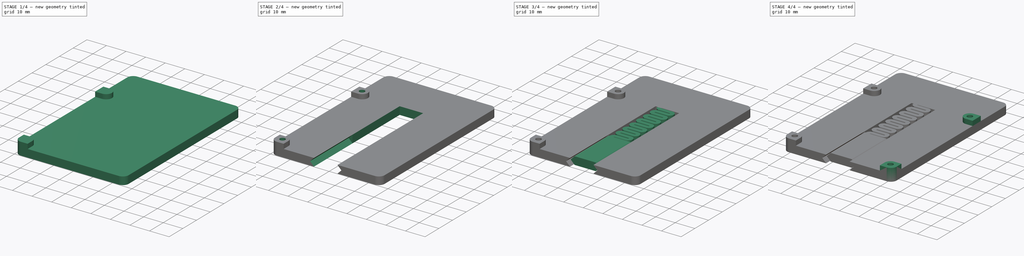
[diagram: build sequence overview — one tinted view per stage of 4, left to right]
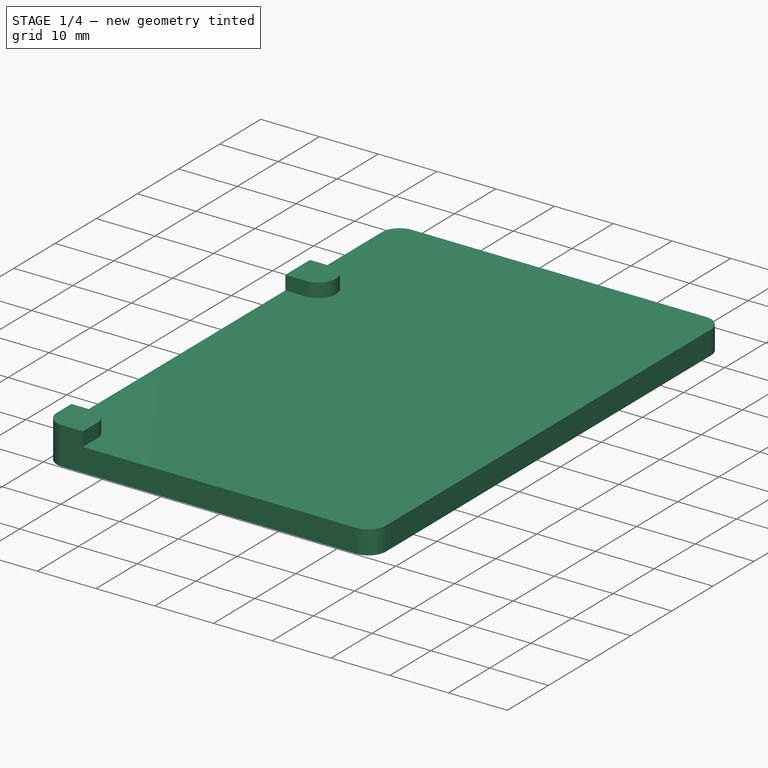
[diagram: stage 1 of 4 — iso view after this stage's code; geometry added in this stage tinted green]
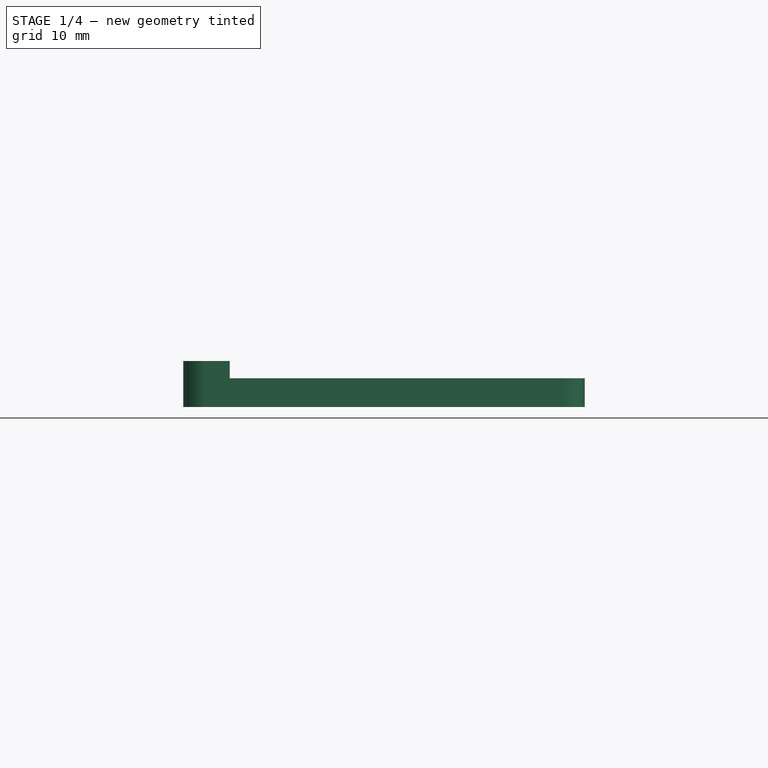
[diagram: stage 1 of 4 — front view after this stage's code; geometry added in this stage tinted green]
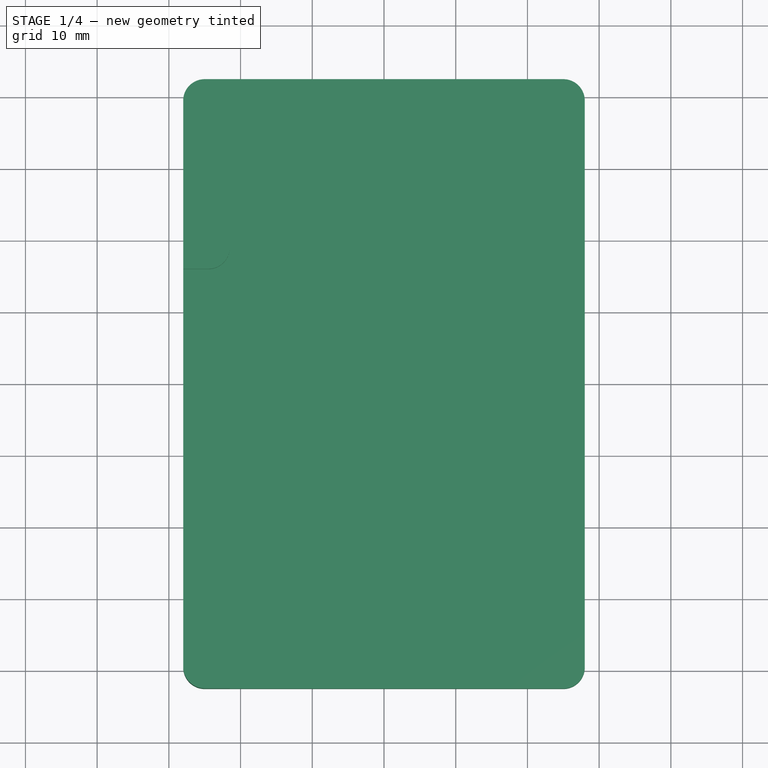
[diagram: stage 1 of 4 — top view after this stage's code; geometry added in this stage tinted green]
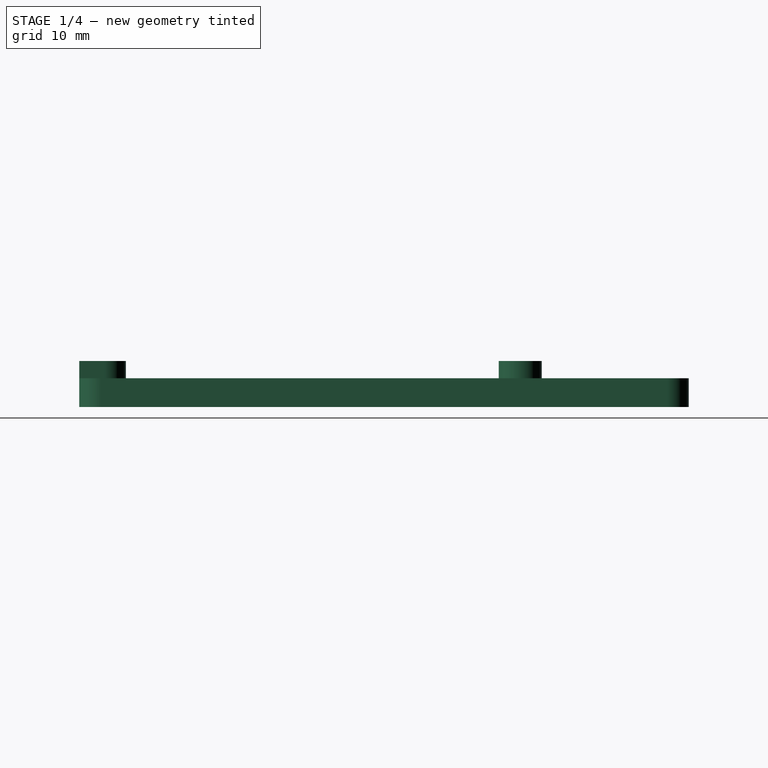
[diagram: stage 1 of 4 — right view after this stage's code; geometry added in this stage tinted green]
FCSTD DOCUMENT  (FreeCAD 0.20R29177 (Git))
Label: Mount
License: All rights reserved
LicenseURL: http://en.wikipedia.org/wiki/All_rights_reserved
objects: Sketcher::SketchObject×10, PartDesign::Pad×6, PartDesign::Pocket×4, PartDesign::LinearPattern×1, PartDesign::Mirrored×1, PartDesign::Body×1
note: 33 computed .brp shape members not serialized (recipe doc carries the construction recipe); baked Part::Feature solids carry a one-line shape summary decoded from their .brp

FEATURE [Sketcher::SketchObject] Sketch
  FullyConstrained = true
  MapMode = 5
  Support = -> [XY_Plane]
  sketch-geometry (10):
    g0: ArcOfCircle CenterX=-25 CenterY=39.5 CenterZ=0 NormalX=0 NormalY=0 NormalZ=1 AngleXU=0 Radius=3 StartAngle=1.5708 EndAngle=3.14159
    g1: LineSegment StartX=-25 StartY=42.5 StartZ=0 EndX=25 EndY=42.5 EndZ=0
    g2: ArcOfCircle CenterX=25 CenterY=39.5 CenterZ=0 NormalX=0 NormalY=0 NormalZ=1 AngleXU=0 Radius=3 StartAngle=1.1e-15 EndAngle=1.5708
    g3: LineSegment StartX=28 StartY=39.5 StartZ=0 EndX=28 EndY=-39.5 EndZ=0
    g4: ArcOfCircle CenterX=25 CenterY=-39.5 CenterZ=0 NormalX=0 NormalY=0 NormalZ=1 AngleXU=0 Radius=3 StartAngle=4.71239 EndAngle=6.28319
    g5: LineSegment StartX=25 StartY=-42.5 StartZ=0 EndX=-25 EndY=-42.5 EndZ=0
    g6: ArcOfCircle CenterX=-25 CenterY=-39.5 CenterZ=0 NormalX=0 NormalY=0 NormalZ=1 AngleXU=0 Radius=3 StartAngle=3.14159 EndAngle=4.71239
    g7: LineSegment StartX=-28 StartY=-39.5 StartZ=0 EndX=-28 EndY=39.5 EndZ=0
    g8: GeomPoint X=-28 Y=42.5 Z=0
    g9: GeomPoint X=28 Y=-42.5 Z=0
  constraints (23):
    c: Tangent(g0,g1) = 1.5708
    c: Tangent(g1,g2) = 1.5708
    c: Tangent(g2,g3) = 1.5708
    c: Tangent(g3,g4) = 1.5708
    c: Tangent(g4,g5) = 1.5708
    c: Tangent(g5,g6) = 1.5708
    c: Tangent(g6,g7) = 1.5708
    c: Tangent(g7,g0) = 1.5708
    c: Horizontal(g1)
    c: Horizontal(g5)
    c: Vertical(g3)
    c: Vertical(g7)
    c: Equal(g0,g2)
    c: Equal(g2,g4)
    c: Equal(g4,g6)
    c: PointOnObject(g8,g1)
    c: PointOnObject(g8,g7)
    c: PointOnObject(g9,g3)
    c: PointOnObject(g9,g5)
    c: Radius(g0) = 3
    c: DistanceX(g6,g3) = 56
    c: DistanceY(g5,g0) = 85
    c: Symmetric(g6,g2,g-1)
FEATURE [PartDesign::Pad] Pad  label="Shape"
  Direction = (0,0,1)
  Length = 4
  Length2 = 10
  Profile = -> Sketch
  ReferenceAxis = -> Sketch [N_Axis]
  Type = 0
FEATURE [Sketcher::SketchObject] Sketch001
  AttachmentOffset = pos=(0,0,4) rot=(0,0,1;0rad)
  ExternalGeometry = -> [Pad]
  FullyConstrained = true
  MapMode = 5
  Placement = pos=(0,0,4) rot=(0,0,1;0rad)
  Support = -> [XY_Plane]
  sketch-geometry (10):
    g0: ArcOfCircle CenterX=-25 CenterY=-39.5 CenterZ=0 NormalX=0 NormalY=0 NormalZ=1 AngleXU=0 Radius=3 StartAngle=3.14159 EndAngle=4.71239
    g1: LineSegment StartX=-25 StartY=-42.5 StartZ=0 EndX=-21.5 EndY=-42.5 EndZ=0
    g2: LineSegment StartX=-28 StartY=-39.5 StartZ=0 EndX=-28 EndY=-36 EndZ=0
    g3: ArcOfCircle CenterX=-24.5 CenterY=-39 CenterZ=0 NormalX=0 NormalY=0 NormalZ=1 AngleXU=0 Radius=3 StartAngle=-5.3e-15 EndAngle=1.5708
    g4: LineSegment StartX=-21.5 StartY=-42.5 StartZ=0 EndX=-21.5 EndY=-39 EndZ=0
    g5: LineSegment StartX=-28 StartY=-36 StartZ=0 EndX=-24.5 EndY=-36 EndZ=0
    g6: ArcOfCircle CenterX=-24.5 CenterY=19 CenterZ=0 NormalX=0 NormalY=0 NormalZ=1 AngleXU=0 Radius=3 StartAngle=4.71239 EndAngle=7.85398
    g7: LineSegment StartX=-24.5 StartY=22 StartZ=0 EndX=-28 EndY=22 EndZ=0
    g8: LineSegment StartX=-24.5 StartY=16 StartZ=0 EndX=-28 EndY=16 EndZ=0
    g9: LineSegment StartX=-28 StartY=16 StartZ=0 EndX=-28 EndY=22 EndZ=0
  constraints (31):
    c: Coincident(g0,g-3)
    c: Coincident(g0,g-3)
    c: Coincident(g1,g0)
    c: Horizontal(g1)
    c: Coincident(g2,g0)
    c: Vertical(g2)
    c: Coincident(g4,g1)
    c: Coincident(g4,g3)
    c: Vertical(g4)
    c: Coincident(g5,g2)
    c: Coincident(g5,g3)
    c: Horizontal(g5)
    c: Radius(g3) = 3
    c: DistanceX(g1,g1) = 3.5
    c: DistanceY(g4,g4) = 3.5
    c: DistanceY(g2,g2) = 3.5
    c: DistanceX(g5,g5) = 3.5
    c: Coincident(g7,g6)
    c: Horizontal(g7)
    c: Coincident(g8,g6)
    c: Horizontal(g8)
    c: Coincident(g9,g8)
    c: Coincident(g9,g7)
    c: Vertical(g9)
    c: Radius(g6) = 3
    c: DistanceX(g7,g7) = 3.5
    c: Vertical(g6,g3)
    c: DistanceX(g8,g8) = 3.5
    c: Vertical(g6,g6)
    c: DistanceY(g3,g6) = 58
    c: DistanceX(g0,g3) = 0.5
FEATURE [PartDesign::Pad] Pad001  label="Standoff"
  BaseFeature = -> Pad
  Direction = (0,0,1)
  Length = 2.4
  Length2 = 10
  Profile = -> Sketch001
  ReferenceAxis = -> Sketch001 [N_Axis]
  Type = 0
FEATURE [Sketcher::SketchObject] Sketch003
  AttachmentOffset = pos=(0,0,42.5) rot=(0,0,1;0rad)
  FullyConstrained = true
  MapMode = 5
  Placement = pos=(0,-42.5,-9.4e-15) rot=(1,0,0;1.5708rad)
  Support = -> [XZ_Plane]
  sketch-geometry (6):
    g0: LineSegment StartX=-6 StartY=0 StartZ=0 EndX=-8 EndY=2 EndZ=0
    g1: LineSegment StartX=-8 StartY=2 StartZ=0 EndX=-6 EndY=4 EndZ=0
    g2: LineSegment StartX=-6 StartY=4 StartZ=0 EndX=6 EndY=4 EndZ=0
    g3: LineSegment StartX=6 StartY=4 StartZ=0 EndX=8 EndY=2 EndZ=0
    g4: LineSegment StartX=8 StartY=2 StartZ=0 EndX=6 EndY=0 EndZ=0
    g5: LineSegment StartX=6 StartY=0 StartZ=0 EndX=-6 EndY=0 EndZ=0
  constraints (17):
    c: PointOnObject(g0,g-1)
    c: Coincident(g1,g0)
    c: Coincident(g2,g1)
    c: Horizontal(g2)
    c: Coincident(g3,g2)
    c: Coincident(g4,g3)
    c: Coincident(g5,g4)
    c: Coincident(g5,g0)
    c: Angle(g5,g0) = 2.35619
    c: Angle(g4,g5) = 2.35619
    c: Perpendicular(g3,g4)
    c: Perpendicular(g1,g0)
    c: Equal(g0,g1)
    c: Equal(g3,g4)
    c: Symmetric(g0,g4,g-1)
    c: DistanceX(g5,g5) = 12
    c: DistanceY(g4,g2) = 4
FEATURE [Sketcher::SketchObject] Sketch005
  ExternalGeometry = -> [Sketch001]
  FullyConstrained = true
  MapMode = 5
  Support = -> [XY_Plane]
  sketch-geometry (14):
    g0: LineSegment StartX=-21.9019 StartY=-40.5 StartZ=0 EndX=-21.9019 EndY=-37.5 EndZ=0
    g1: LineSegment StartX=-21.9019 StartY=-37.5 StartZ=0 EndX=-24.5 EndY=-36 EndZ=0
    g2: LineSegment StartX=-24.5 StartY=-36 StartZ=0 EndX=-27.0981 EndY=-37.5 EndZ=0
    g3: LineSegment StartX=-27.0981 StartY=-37.5 StartZ=0 EndX=-27.0981 EndY=-40.5 EndZ=0
    g4: LineSegment StartX=-27.0981 StartY=-40.5 StartZ=0 EndX=-24.5 EndY=-42 EndZ=0
    g5: LineSegment StartX=-24.5 StartY=-42 StartZ=0 EndX=-21.9019 EndY=-40.5 EndZ=0
    g6: Circle CenterX=-24.5 CenterY=-39 CenterZ=0 NormalX=0 NormalY=0 NormalZ=1 AngleXU=0 Radius=3
    g7: LineSegment StartX=-21.9019 StartY=17.5 StartZ=0 EndX=-21.9019 EndY=20.5 EndZ=0
    g8: LineSegment StartX=-21.9019 StartY=20.5 StartZ=0 EndX=-24.5 EndY=22 EndZ=0
    g9: LineSegment StartX=-24.5 StartY=22 StartZ=0 EndX=-27.0981 EndY=20.5 EndZ=0
    g10: LineSegment StartX=-27.0981 StartY=20.5 StartZ=0 EndX=-27.0981 EndY=17.5 EndZ=0
    g11: LineSegment StartX=-27.0981 StartY=17.5 StartZ=0 EndX=-24.5 EndY=16 EndZ=0
    g12: LineSegment StartX=-24.5 StartY=16 StartZ=0 EndX=-21.9019 EndY=17.5 EndZ=0
    g13: Circle CenterX=-24.5 CenterY=19 CenterZ=0 NormalX=0 NormalY=0 NormalZ=1 AngleXU=0 Radius=3
  constraints (32):
    c: Coincident(g0,g1)
    c: Coincident(g1,g2)
    c: Coincident(g2,g3)
    c: Coincident(g3,g4)
    c: Coincident(g4,g5)
    c: Coincident(g5,g0)
    c: Equal(g0, g1-g5) x5
    c: PointOnObject(g0,g6)
    c: PointOnObject(g1,g6)
    c: PointOnObject(g2,g6)
    c: PointOnObject(g3,g6)
    c: PointOnObject(g4,g6)
    c: PointOnObject(g5,g6)
    c: Coincident(g6,g-4)
    c: Coincident(g7,g8)
    c: Coincident(g8,g9)
    c: Coincident(g9,g10)
    c: Coincident(g10,g11)
    c: Coincident(g11,g12)
    c: Coincident(g12,g7)
    c: Equal(g7, g8-g12) x5
    c: PointOnObject(g7,g13)
    c: PointOnObject(g8,g13)
    c: PointOnObject(g9,g13)
    c: PointOnObject(g10,g13)
    c: PointOnObject(g11,g13)
    c: PointOnObject(g12,g13)
    c: Coincident(g13,g-3)
    c: Equal(g13,g6)
    c: Diameter(g13) = 6
    c: Vertical(g0)
    c: Vertical(g7)
FEATURE [PartDesign::Pocket] Pocket002  label="HexNut"
  BaseFeature = -> Pad001
  Direction = (0,0,-1)
  Length = 4
  Length2 = 5
  Profile = -> Sketch005
  ReferenceAxis = -> Sketch005 [N_Axis]
  Reversed = true
  Type = 0
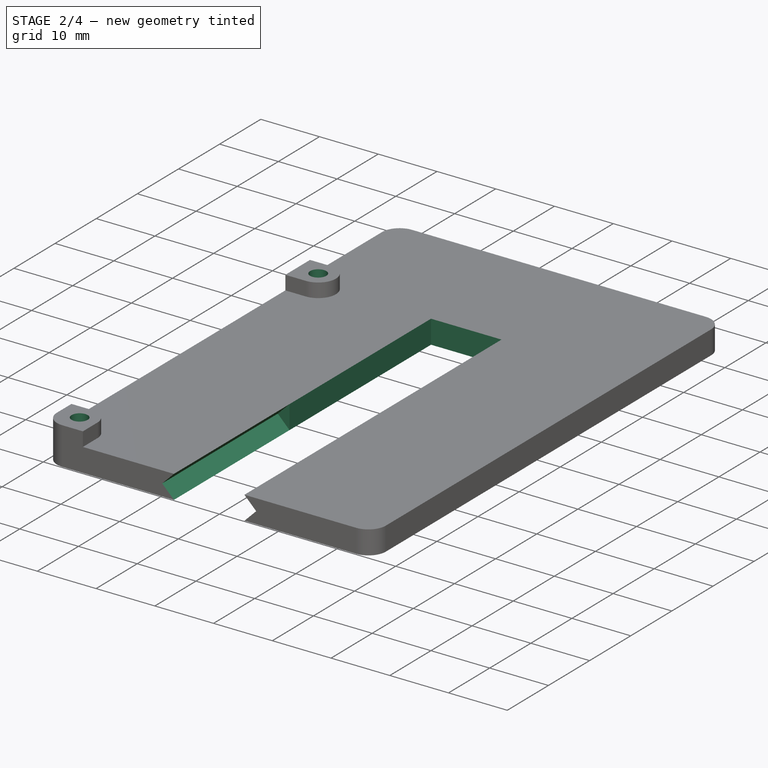
[diagram: stage 2 of 4 — iso view after this stage's code; geometry added in this stage tinted green]
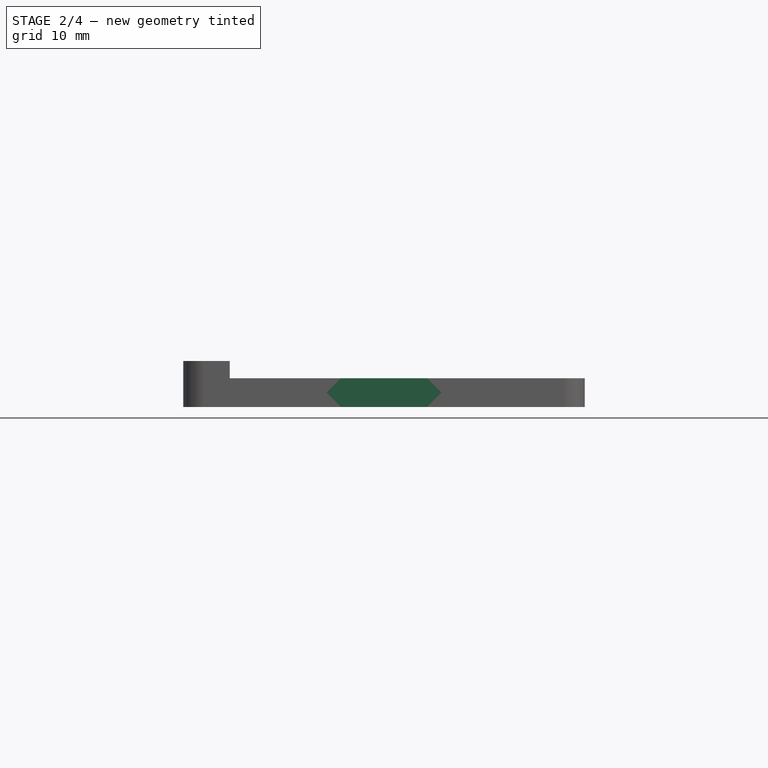
[diagram: stage 2 of 4 — front view after this stage's code; geometry added in this stage tinted green]
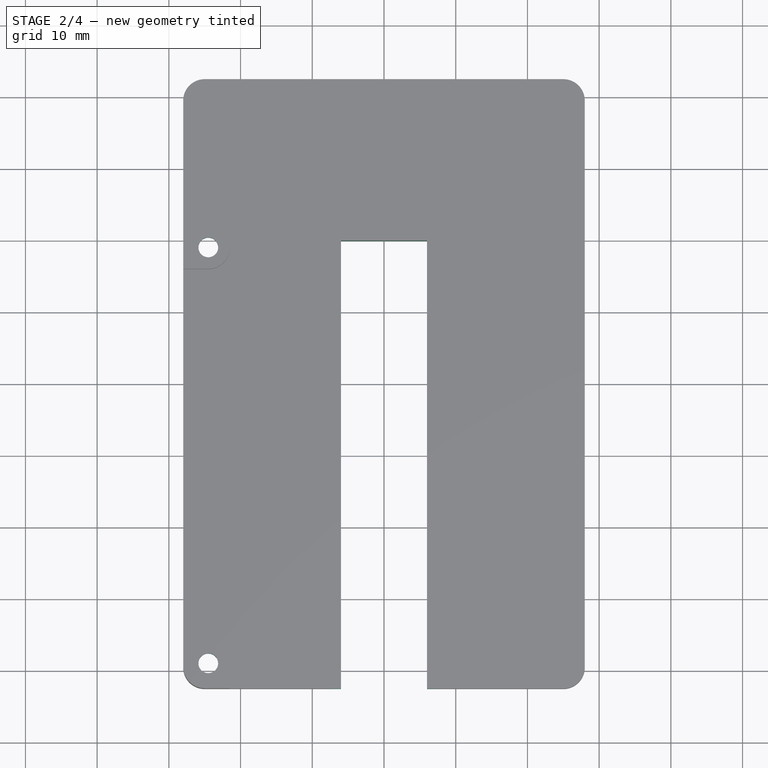
[diagram: stage 2 of 4 — top view after this stage's code; geometry added in this stage tinted green]
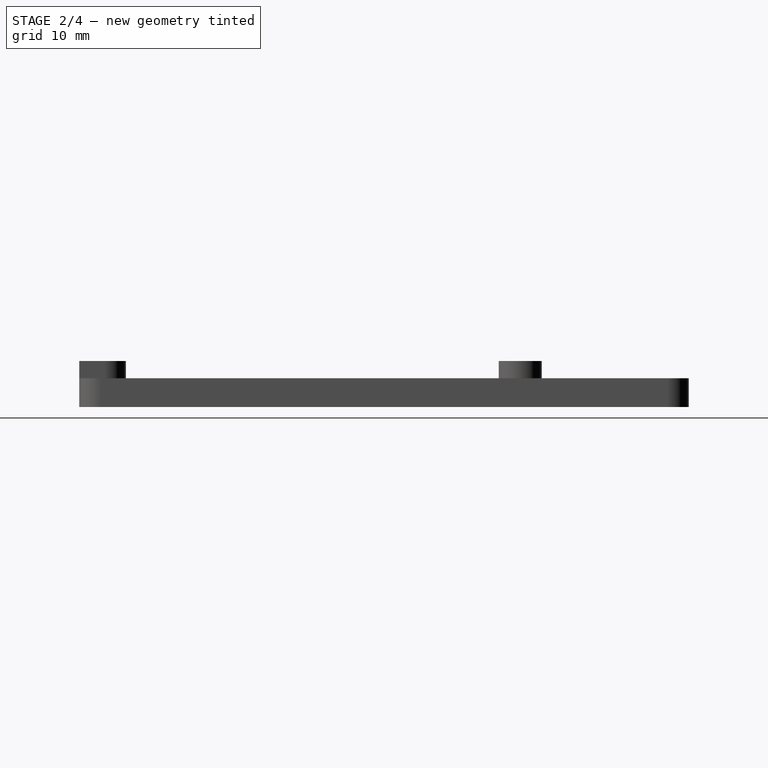
[diagram: stage 2 of 4 — right view after this stage's code; geometry added in this stage tinted green]
FEATURE [Sketcher::SketchObject] Sketch006
  AttachmentOffset = pos=(0,0,4) rot=(0,0,1;0rad)
  ExternalGeometry = -> [Sketch001]
  FullyConstrained = true
  MapMode = 5
  Placement = pos=(0,0,4) rot=(0,0,1;0rad)
  Support = -> [XY_Plane]
  sketch-geometry (2):
    g0: Circle CenterX=-24.5 CenterY=19 CenterZ=0 NormalX=0 NormalY=0 NormalZ=1 AngleXU=0 Radius=1.375
    g1: Circle CenterX=-24.5 CenterY=-39 CenterZ=0 NormalX=0 NormalY=0 NormalZ=1 AngleXU=0 Radius=1.375
  constraints (4):
    c: Coincident(g0,g-3)
    c: Coincident(g1,g-4)
    c: Equal(g1,g0)
    c: Diameter(g1) = 2.75
FEATURE [PartDesign::Pocket] Pocket003  label="ScrewHole"
  BaseFeature = -> Pocket002
  Direction = (0,0,-1)
  Length = 5
  Length2 = 5
  Profile = -> Sketch006
  ReferenceAxis = -> Sketch006 [N_Axis]
  Reversed = true
  Type = 1
FEATURE [PartDesign::Pocket] Pocket001  label="SliderCut"
  BaseFeature = -> Pocket003
  Direction = (0,1,2e-16)
  Length = 28.1
  Length2 = 5
  Profile = -> Sketch003
  ReferenceAxis = -> Sketch003 [N_Axis]
  Type = 0
FEATURE [Sketcher::SketchObject] Sketch007
  FullyConstrained = true
  MapMode = 5
  Support = -> [XY_Plane]
  sketch-geometry (4):
    g0: LineSegment StartX=-6 StartY=20 StartZ=0 EndX=6 EndY=20 EndZ=0
    g1: LineSegment StartX=6 StartY=20 StartZ=0 EndX=6 EndY=-15 EndZ=0
    g2: LineSegment StartX=6 StartY=-15 StartZ=0 EndX=-6 EndY=-15 EndZ=0
    g3: LineSegment StartX=-6 StartY=-15 StartZ=0 EndX=-6 EndY=20 EndZ=0
  constraints (12):
    c: Coincident(g0,g1)
    c: Coincident(g1,g2)
    c: Coincident(g2,g3)
    c: Coincident(g3,g0)
    c: Horizontal(g0)
    c: Horizontal(g2)
    c: Vertical(g1)
    c: Vertical(g3)
    c: DistanceY(g1,g1) = 35
    c: DistanceX(g2,g2) = 12
    c: DistanceY(g-1,g0) = 20
    c: DistanceX(g0,g-1) = 6
FEATURE [PartDesign::Pocket] Pocket  label="SpringCut"
  BaseFeature = -> Pocket001
  Direction = (0,0,-1)
  Length = 5
  Length2 = 5
  Profile = -> Sketch007
  ReferenceAxis = -> Sketch007 [N_Axis]
  Reversed = true
  Type = 1
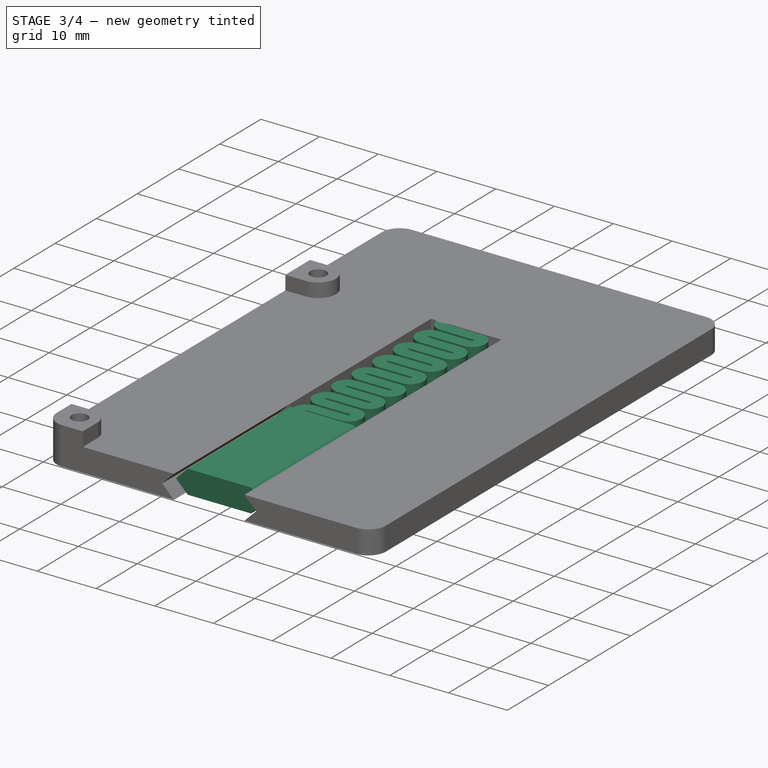
[diagram: stage 3 of 4 — iso view after this stage's code; geometry added in this stage tinted green]
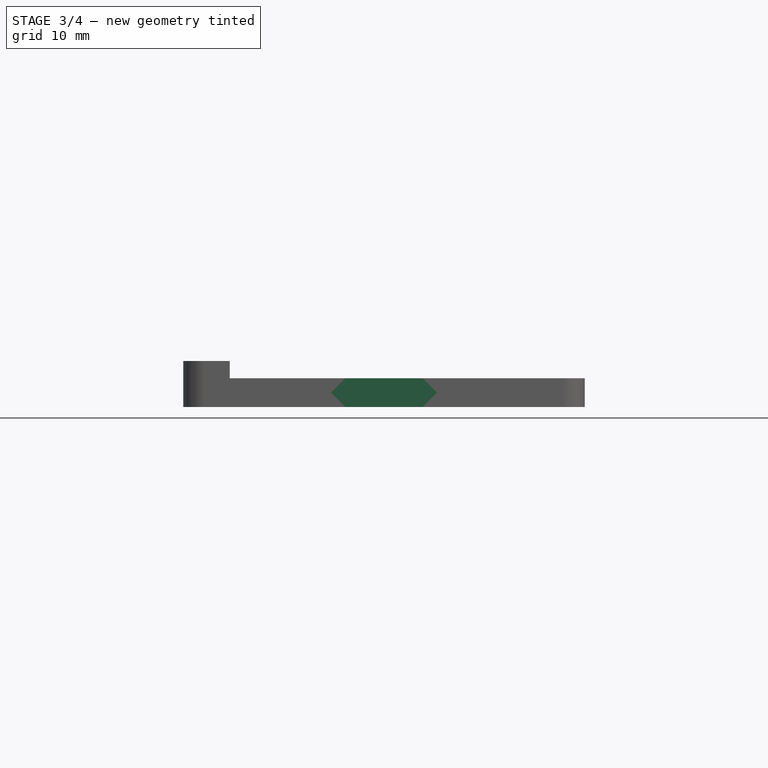
[diagram: stage 3 of 4 — front view after this stage's code; geometry added in this stage tinted green]
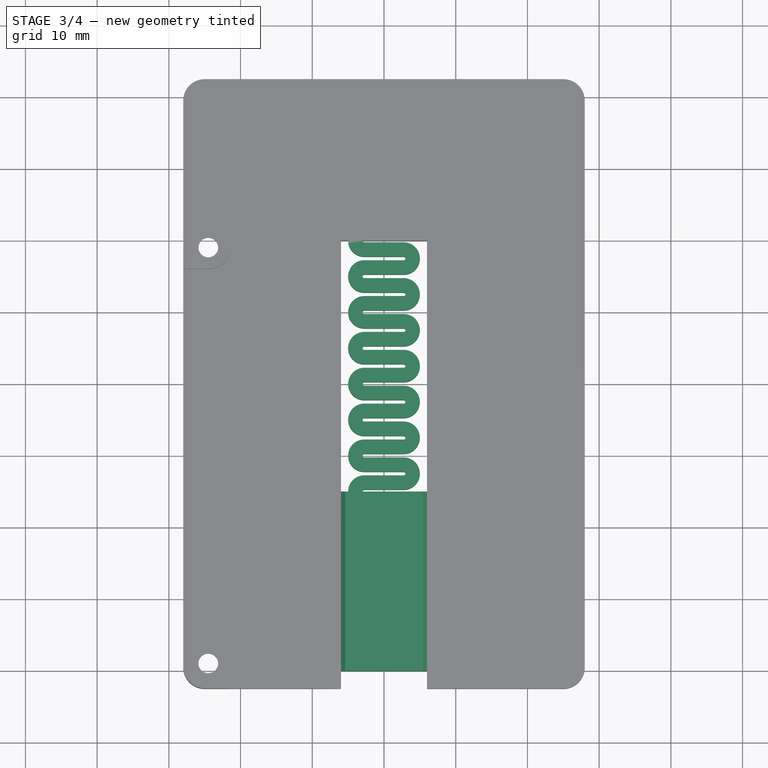
[diagram: stage 3 of 4 — top view after this stage's code; geometry added in this stage tinted green]
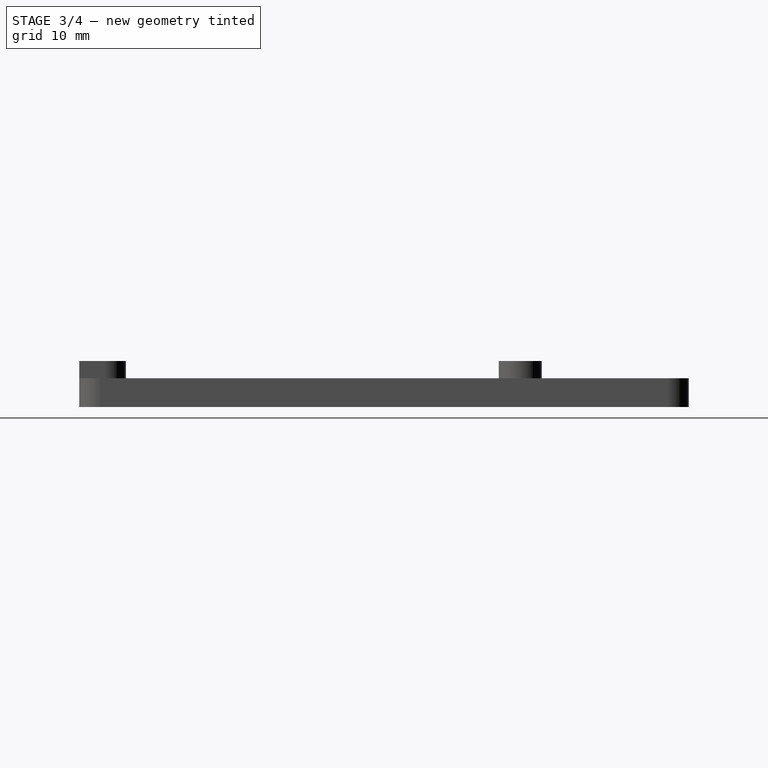
[diagram: stage 3 of 4 — right view after this stage's code; geometry added in this stage tinted green]
FEATURE [Sketcher::SketchObject] Sketch008
  AttachmentOffset = pos=(0,0,15) rot=(0,0,1;0rad)
  FullyConstrained = true
  MapMode = 5
  Placement = pos=(0,-15,-3.3e-15) rot=(1,0,0;1.5708rad)
  Support = -> [XZ_Plane]
  sketch-geometry (6):
    g0: LineSegment StartX=-5.4 StartY=-2e-16 StartZ=0 EndX=5.4 EndY=0 EndZ=0
    g1: LineSegment StartX=5.4 StartY=0 StartZ=0 EndX=7.4 EndY=2 EndZ=0
    g2: LineSegment StartX=7.4 StartY=2 StartZ=0 EndX=5.4 EndY=4 EndZ=0
    g3: LineSegment StartX=5.4 StartY=4 StartZ=0 EndX=-5.4 EndY=4 EndZ=0
    g4: LineSegment StartX=-5.4 StartY=4 StartZ=0 EndX=-7.4 EndY=2 EndZ=0
    g5: LineSegment StartX=-7.4 StartY=2 StartZ=0 EndX=-5.4 EndY=-2e-16 EndZ=0
  constraints (17):
    c: PointOnObject(g0,g-1)
    c: Coincident(g1,g0)
    c: Coincident(g2,g1)
    c: Coincident(g3,g2)
    c: Horizontal(g3)
    c: Coincident(g4,g3)
    c: Coincident(g5,g4)
    c: Coincident(g5,g0)
    c: Angle(g1,g0) = 2.35619
    c: Angle(g0,g5) = 2.35619
    c: Perpendicular(g4,g5)
    c: Perpendicular(g1,g2)
    c: Equal(g2,g1)
    c: Equal(g4,g5)
    c: Symmetric(g0,g0,g-1)
    c: DistanceX(g0,g0) = 10.8
    c: DistanceY(g0,g2) = 4
FEATURE [Sketcher::SketchObject] Sketch009
  FullyConstrained = true
  MapMode = 5
  Support = -> [XY_Plane]
  sketch-geometry (13):
    g0: LineSegment StartX=-5 StartY=20 StartZ=0 EndX=-3 EndY=20 EndZ=0
    g1: ArcOfCircle CenterX=-2.75 CenterY=20 CenterZ=0 NormalX=0 NormalY=0 NormalZ=1 AngleXU=0 Radius=0.25 StartAngle=3.14159 EndAngle=4.71239
    g2: LineSegment StartX=-2.75 StartY=19.75 StartZ=0 EndX=2.75 EndY=19.75 EndZ=0
    g3: ArcOfCircle CenterX=2.75 CenterY=17.5 CenterZ=0 NormalX=0 NormalY=0 NormalZ=1 AngleXU=0 Radius=2.25 StartAngle=4.71239 EndAngle=7.85398
    g4: ArcOfCircle CenterX=-2.75 CenterY=20 CenterZ=0 NormalX=0 NormalY=0 NormalZ=1 AngleXU=0 Radius=2.25 StartAngle=3.14159 EndAngle=4.71239
    g5: LineSegment StartX=-2.75 StartY=17.75 StartZ=0 EndX=2.75 EndY=17.75 EndZ=0
    g6: ArcOfCircle CenterX=2.75 CenterY=17.5 CenterZ=0 NormalX=0 NormalY=0 NormalZ=1 AngleXU=0 Radius=0.25 StartAngle=4.71239 EndAngle=7.85398
    g7: LineSegment StartX=2.75 StartY=17.25 StartZ=0 EndX=-2.75 EndY=17.25 EndZ=0
    g8: LineSegment StartX=2.75 StartY=15.25 StartZ=0 EndX=-2.75 EndY=15.25 EndZ=0
    g9: ArcOfCircle CenterX=-2.75 CenterY=15 CenterZ=0 NormalX=0 NormalY=0 NormalZ=1 AngleXU=0 Radius=0.25 StartAngle=1.5708 EndAngle=3.14159
    g10: ArcOfCircle CenterX=-2.75 CenterY=15 CenterZ=0 NormalX=0 NormalY=0 NormalZ=1 AngleXU=0 Radius=2.25 StartAngle=1.5708 EndAngle=3.14159
    g11: LineSegment StartX=-5 StartY=15 StartZ=0 EndX=-3 EndY=15 EndZ=0
    g12: GeomPoint X=5 Y=17.5 Z=0
  constraints (34):
    c: Horizontal(g0)
    c: DistanceX(g0,g0) = 2
    c: DistanceY(g-1,g0) = 20
    c: DistanceX(g0,g-1) = 5
    c: Coincident(g1,g0)
    c: Perpendicular(g1,g0)
    c: Horizontal(g2)
    c: Tangent(g2,g1) = -1.5708
    c: Radius(g1) = 0.25
    c: Coincident(g4,g1)
    c: Coincident(g4,g0)
    c: Tangent(g3,g2) = 1.5708
    c: Horizontal(g5)
    c: Equal(g5,g2)
    c: Tangent(g5,g4) = -1.5708
    c: Coincident(g6,g3)
    c: Coincident(g6,g5)
    c: Equal(g6,g1)
    c: Horizontal(g7)
    c: Horizontal(g8)
    c: Coincident(g10,g9)
    c: Coincident(g11,g10)
    c: Coincident(g11,g9)
    c: Horizontal(g11)
    c: Perpendicular(g9,g11)
    c: Tangent(g9,g8) = -1.5708
    c: Tangent(g10,g7) = -1.5708
    c: Tangent(g7,g6) = 1.5708
    c: Tangent(g8,g3) = 1.5708
    c: Equal(g9,g6)
    c: Vertical(g10,g0)
    c: PointOnObject(g12,g3)
    c: Horizontal(g12,g3)
    c: DistanceX(g10,g12) = 10
FEATURE [PartDesign::Pad] Pad002  label="SpringSegment"
  BaseFeature = -> Pocket
  Direction = (0,0,1)
  Length = 4
  Length2 = 10
  Profile = -> Sketch009
  ReferenceAxis = -> Sketch009 [N_Axis]
  Type = 0
FEATURE [PartDesign::LinearPattern] LinearPattern  label="Spring"
  BaseFeature = -> Pad002
  Direction = -> Sketch009 [V_Axis]
  Length = 30
  Occurrences = 7
  Originals = -> [Pad002]
  Reversed = true
FEATURE [PartDesign::Pad] Pad003  label="Slider"
  BaseFeature = -> LinearPattern
  Direction = (0,-1,-2e-16)
  Length = 25
  Length2 = 10
  Profile = -> Sketch008
  ReferenceAxis = -> Sketch008 [N_Axis]
  Type = 0
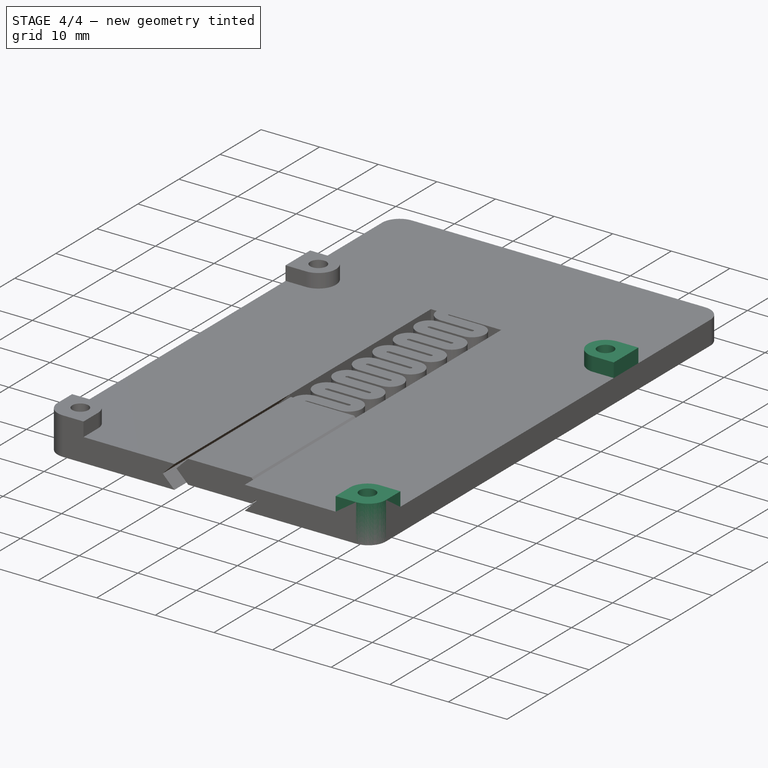
[diagram: stage 4 of 4 — iso view after this stage's code; geometry added in this stage tinted green]
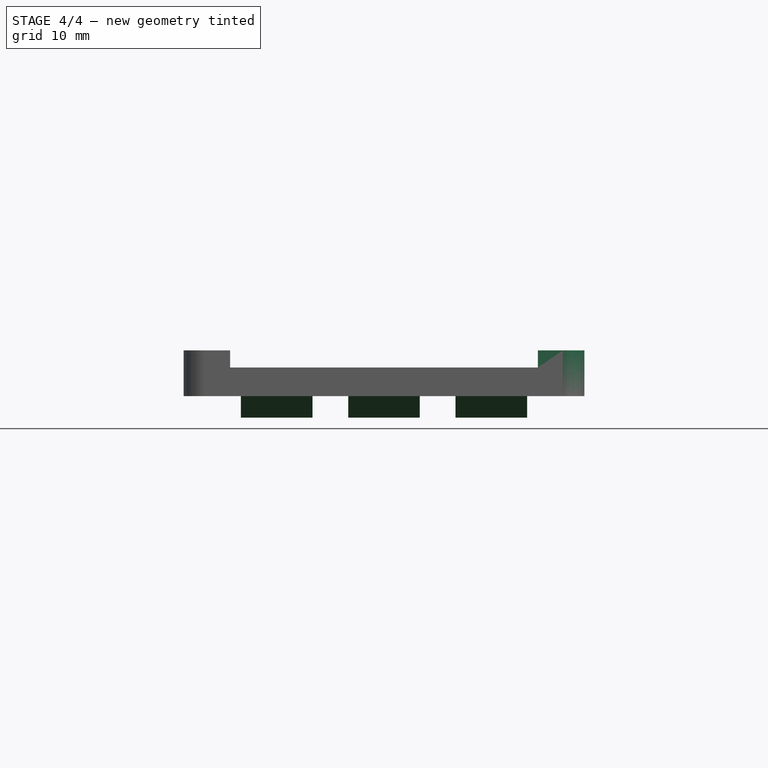
[diagram: stage 4 of 4 — front view after this stage's code; geometry added in this stage tinted green]
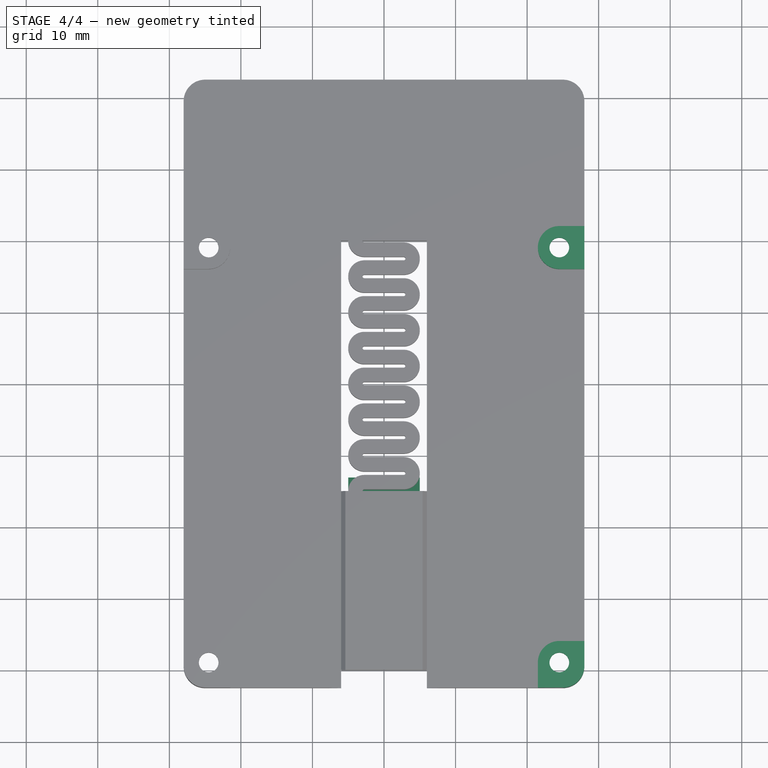
[diagram: stage 4 of 4 — top view after this stage's code; geometry added in this stage tinted green]
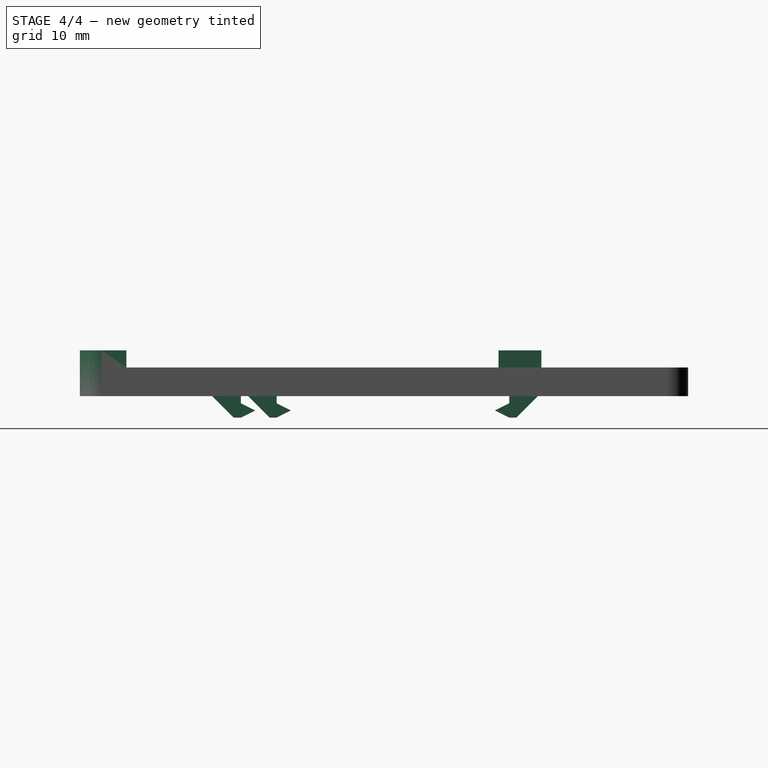
[diagram: stage 4 of 4 — right view after this stage's code; geometry added in this stage tinted green]
FEATURE [Sketcher::SketchObject] Sketch010
  AttachmentOffset = pos=(0,0,5) rot=(0,0,1;0rad)
  FullyConstrained = true
  MapMode = 5
  Placement = pos=(5,-1.1e-15,1.1e-15) rot=(0.57735,0.57735,0.57735;2.0944rad)
  Support = -> [YZ_Plane]
  sketch-geometry (6):
    g0: LineSegment StartX=-19 StartY=0 StartZ=0 EndX=-15 EndY=0 EndZ=0
    g1: LineSegment StartX=-15 StartY=0 StartZ=0 EndX=-15 EndY=-1 EndZ=0
    g2: LineSegment StartX=-15 StartY=-1 StartZ=0 EndX=-13 EndY=-2 EndZ=0
    g3: LineSegment StartX=-13 StartY=-2 StartZ=0 EndX=-15 EndY=-3 EndZ=0
    g4: LineSegment StartX=-15 StartY=-3 StartZ=0 EndX=-16 EndY=-3 EndZ=0
    g5: LineSegment StartX=-19 StartY=0 StartZ=0 EndX=-16 EndY=-3 EndZ=0
  constraints (18):
    c: PointOnObject(g0,g-1)
    c: PointOnObject(g0,g-1)
    c: DistanceX(g0,g-1) = 15
    c: Coincident(g1,g0)
    c: Vertical(g1)
    c: Coincident(g2,g1)
    c: DistanceY(g1,g1) = 1
    c: DistanceY(g2,g2) = 1
    c: DistanceX(g2,g2) = 2
    c: Coincident(g3,g2)
    c: DistanceX(g3,g3) = 2
    c: DistanceY(g3,g3) = 1
    c: Coincident(g4,g3)
    c: Horizontal(g4)
    c: Coincident(g5,g0)
    c: Coincident(g5,g4)
    c: DistanceX(g4,g4) = 1
    c: DistanceX(g5,g5) = 3
FEATURE [PartDesign::Pad] Pad004  label="SliderHook"
  BaseFeature = -> Pad003
  Direction = (1,-2e-16,3e-16)
  Length = 10
  Length2 = 10
  Profile = -> Sketch010
  ReferenceAxis = -> Sketch010 [N_Axis]
  Reversed = true
  Type = 0
FEATURE [Sketcher::SketchObject] Sketch011
  AttachmentOffset = pos=(0,0,10) rot=(0,0,1;0rad)
  FullyConstrained = true
  MapMode = 5
  Placement = pos=(10,-2.2e-15,2.2e-15) rot=(0.57735,0.57735,0.57735;2.0944rad)
  Support = -> [YZ_Plane]
  sketch-geometry (12):
    g0: LineSegment StartX=-20 StartY=0 StartZ=0 EndX=-20 EndY=-1 EndZ=0
    g1: LineSegment StartX=-20 StartY=-1 StartZ=0 EndX=-18 EndY=-2 EndZ=0
    g2: LineSegment StartX=-18 StartY=-2 StartZ=0 EndX=-20 EndY=-3 EndZ=0
    g3: LineSegment StartX=-20 StartY=-3 StartZ=0 EndX=-21 EndY=-3 EndZ=0
    g4: LineSegment StartX=-21 StartY=-3 StartZ=0 EndX=-24 EndY=0 EndZ=0
    g5: LineSegment StartX=-24 StartY=0 StartZ=0 EndX=-20 EndY=0 EndZ=0
    g6: LineSegment StartX=17.5 StartY=0 StartZ=0 EndX=17.5 EndY=-1 EndZ=0
    g7: LineSegment StartX=17.5 StartY=-1 StartZ=0 EndX=15.5 EndY=-2 EndZ=0
    g8: LineSegment StartX=15.5 StartY=-2 StartZ=0 EndX=17.5 EndY=-3 EndZ=0
    g9: LineSegment StartX=17.5 StartY=-3 StartZ=0 EndX=18.5 EndY=-3 EndZ=0
    g10: LineSegment StartX=18.5 StartY=-3 StartZ=0 EndX=21.5 EndY=0 EndZ=0
    g11: LineSegment StartX=21.5 StartY=0 StartZ=0 EndX=17.5 EndY=0 EndZ=0
  constraints (36):
    c: PointOnObject(g0,g-1)
    c: Vertical(g0)
    c: Coincident(g1,g0)
    c: Coincident(g2,g1)
    c: Coincident(g3,g2)
    c: Horizontal(g3)
    c: Coincident(g4,g3)
    c: PointOnObject(g4,g-1)
    c: Coincident(g5,g4)
    c: Coincident(g5,g0)
    c: DistanceY(g0,g0) = 1
    c: DistanceX(g1,g1) = 2
    c: DistanceY(g1,g1) = 1
    c: DistanceY(g2,g2) = 1
    c: DistanceX(g2,g2) = 2
    c: DistanceX(g3,g3) = 1
    c: DistanceX(g5,g5) = 4
    c: DistanceX(g0,g-1) = 20
    c: PointOnObject(g6,g-1)
    c: Vertical(g6)
    c: Coincident(g7,g6)
    c: Coincident(g8,g7)
    c: Coincident(g9,g8)
    c: Horizontal(g9)
    c: Coincident(g10,g9)
    c: PointOnObject(g10,g-1)
    c: Coincident(g11,g10)
    c: Coincident(g11,g6)
    c: DistanceY(g6,g6) = 1
    c: DistanceY(g7,g7) = 1
    c: DistanceX(g7,g7) = 2
    c: DistanceX(g8,g8) = 2
    c: DistanceX(g9,g9) = 1
    c: DistanceX(g11,g11) = 4
    c: DistanceY(g8,g8) = 1
    c: DistanceX(g-1,g6) = 17.5
FEATURE [PartDesign::Pad] Pad005  label="StopAndHook"
  BaseFeature = -> Pad004
  Direction = (1,-2e-16,3e-16)
  Length = 10
  Length2 = 10
  Profile = -> Sketch011
  ReferenceAxis = -> Sketch011 [N_Axis]
  Type = 0
FEATURE [PartDesign::Mirrored] Mirrored
  BaseFeature = -> Pad005
  MirrorPlane = -> Sketch001 [V_Axis]
  Originals = -> [Pad001,Pocket002,Pocket003,Pad005]
  Refine = true
FEATURE [PartDesign::Body] Body  label="Mount"
  Group = -> [Sketch,Pad,Sketch001,Pad001,Pocket002,Pocket003,Sketch003,Pocket001,Sketch005,Sketch006,Sketch007,Pocket,Sketch009,Pad002,LinearPattern,Sketch008,Pad003,Sketch010,Pad004,Sketch011,Pad005,Mirrored]
  Origin = -> Origin
  Tip = -> Mirrored
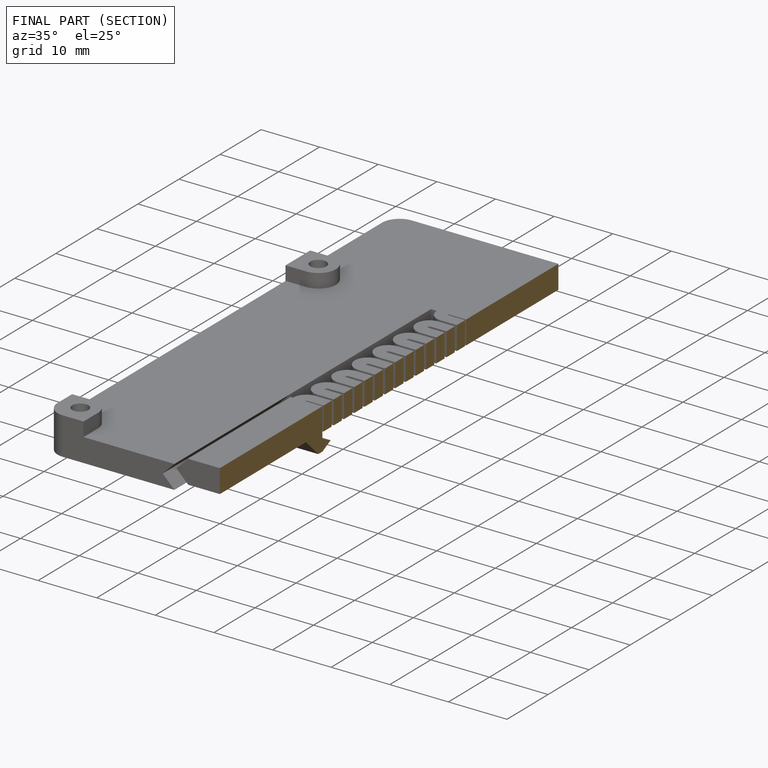
[diagram: finished part — half-section view (interior)]
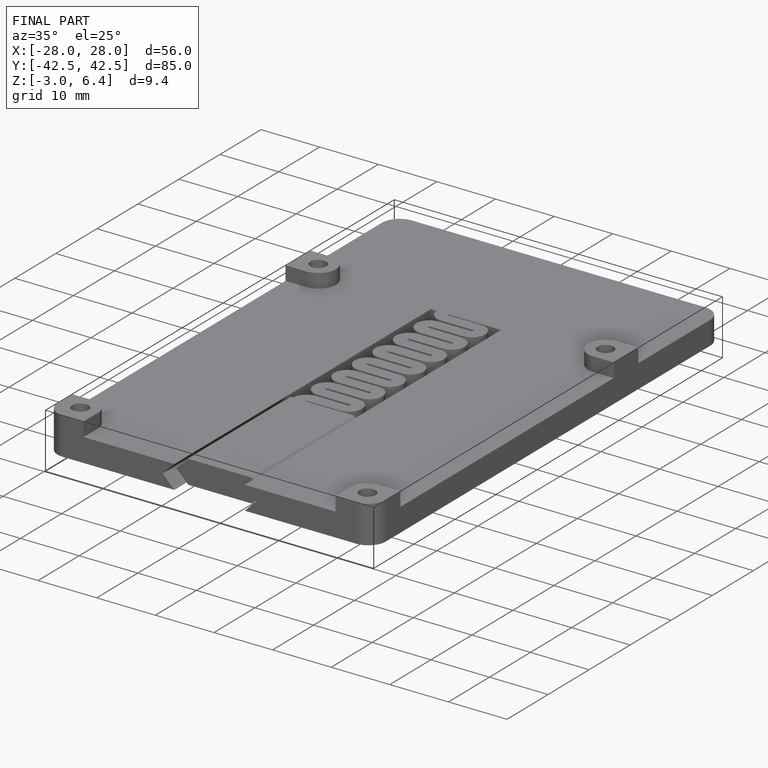
[diagram: finished part — iso view with bounding-box wireframe]
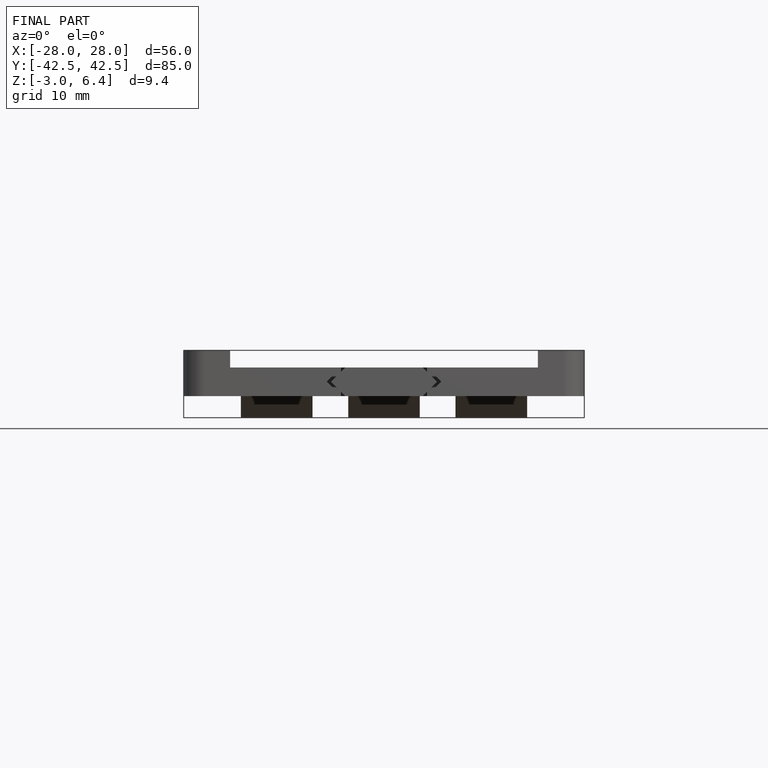
[diagram: finished part — front view with bounding-box wireframe]
